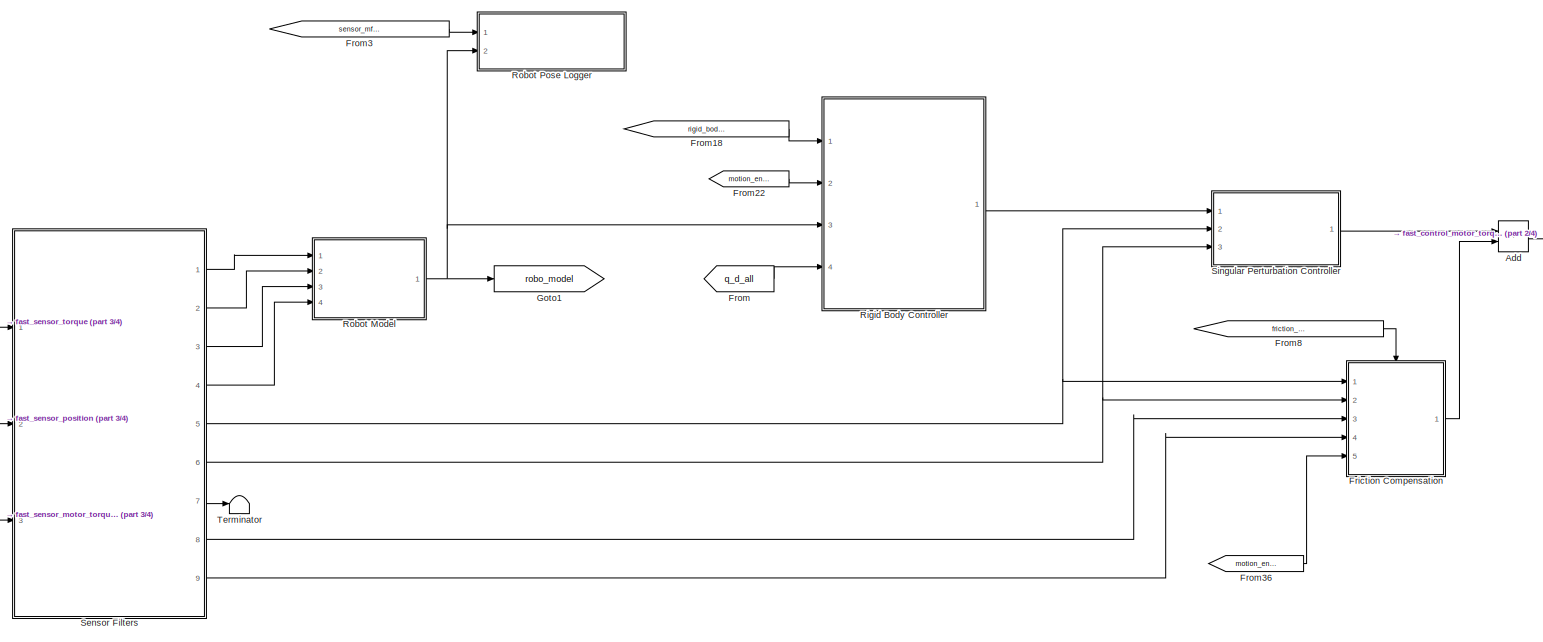
[diagram: root canvas - part 1/4, full width, top band]
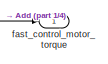
[diagram: root canvas - part 2/4, top right region]
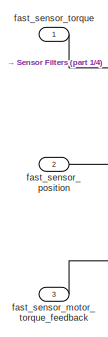
[diagram: root canvas - part 3/4, middle left region]
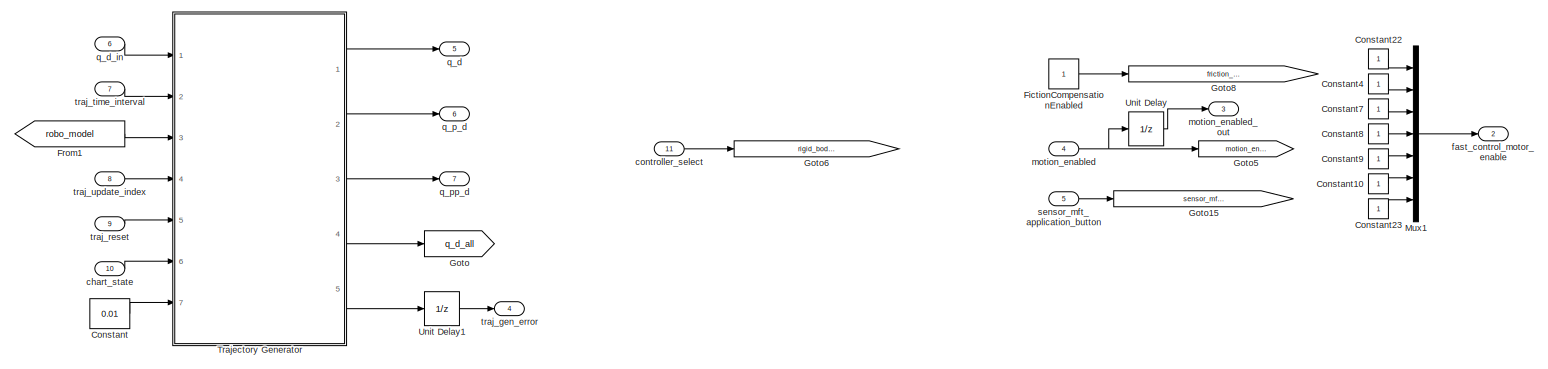
[diagram: root canvas - part 4/4, full width, bottom band]
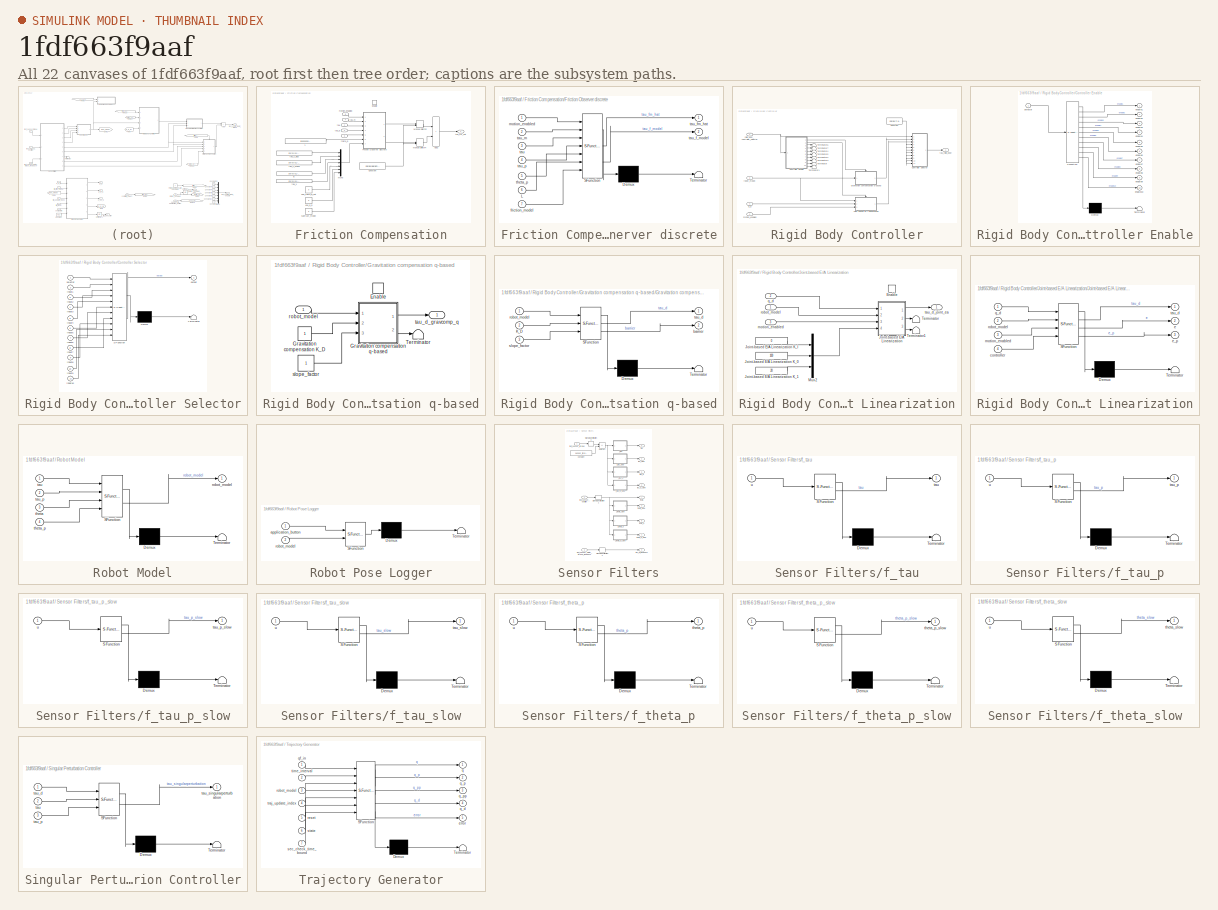
[diagram: thumbnail index - all 22 canvases of the model, root first then tree order]
MODEL slx_1fdf663f9aaf
KIND model
CONFIG AbsTol = auto
CONFIG EnableMultiTasking = off
CONFIG FixedStep = param_controller.T_a
CONFIG InitFcn = iiwa_joint_trajectoryfollowingcontrol_rigid_parameters;
CONFIG MaxStep = auto
CONFIG MinStep = auto
CONFIG RelTol = 1e-3
CONFIG SampleTimeConstraint = Unconstrained
CONFIG Solver = FixedStepAuto
CONFIG SolverName = FixedStepAuto
CONFIG StartTime = 0.0
CONFIG StopTime = 10.0
BLOCK [Sum] Add
  IconShape = rectangular
  Ports = [2, 1]
BLOCK [Constant] Constant
  Value = 0.01
BLOCK [Constant] Constant10
BLOCK [Constant] Constant22
BLOCK [Constant] Constant23
BLOCK [Constant] Constant4
BLOCK [Constant] Constant7
BLOCK [Constant] Constant8
BLOCK [Constant] Constant9
BLOCK [Constant] FictionCompensationEnabled
BLOCK [SubSystem] Friction Compensation
  Ports = [5, 1, 1]
  RequestExecContextInheritance = off
BLOCK [Sum] Friction Compensation/Add2
  IconShape = rectangular
  Ports = [2, 1]
BLOCK [Constant] Friction Compensation/Constant
  Value = zeros(param_robot.n,1)
BLOCK [Constant] Friction Compensation/E
  Value = [zeros(6,1);120]
BLOCK [EnablePort] Friction Compensation/Enable
  Ports = []
BLOCK [SubSystem] Friction Compensation/Friction Observer discrete
  ErrorFcn = Stateflow.Translate.translate
  PermitHierarchicalResolution = ExplicitOnly
  Ports = [7, 2]
  RequestExecContextInheritance = off
  SFBlockType = MATLAB Function
  TreatAsAtomicUnit = on
BLOCK [Demux] Friction Compensation/Friction Observer discrete/ Demux 
  Outputs = 1
  Ports = [1, 1]
BLOCK [S-Function] Friction Compensation/Friction Observer discrete/ SFunction 
  EnableBusSupport = on
  FunctionName = sf_sfun
  Parameters = param_controller,param_robot
  PortCounts = [7 3]
  Ports = [7, 3]
  SFcnIsStateOwnerBlock = off
  SFunctionDeploymentMode = off
  Tag = Stateflow S-Function 20
BLOCK [Terminator] Friction Compensation/Friction Observer discrete/ Terminator 
BLOCK [Inport] Friction Compensation/Friction Observer discrete/L
  Port = 6
BLOCK [Inport] Friction Compensation/Friction Observer discrete/friction_model
  Port = 7
BLOCK [Inport] Friction Compensation/Friction Observer discrete/motion_enabled
BLOCK [Inport] Friction Compensation/Friction Observer discrete/tau
  Port = 3
BLOCK [Outport] Friction Compensation/Friction Observer discrete/tau_f_model
  Port = 2
  VectorParamsAs1DForOutWhenUnconnected = off
BLOCK [Outport] Friction Compensation/Friction Observer discrete/tau_fm_hat
  VectorParamsAs1DForOutWhenUnconnected = off
BLOCK [Inport] Friction Compensation/Friction Observer discrete/tau_m
  Port = 2
BLOCK [Inport] Friction Compensation/Friction Observer discrete/tau_p
  Port = 4
BLOCK [Inport] Friction Compensation/Friction Observer discrete/theta_p
  Port = 5
BLOCK [Constant] Friction Compensation/L
  Value = [200;200;300;300;500;1000;1000]
BLOCK [ManualSwitch] Friction Compensation/Manual Switch2
BLOCK [ManualSwitch] Friction Compensation/Manual Switch4
  CurrentSetting = 0
BLOCK [Mux] Friction Compensation/Mux5
  DisplayOption = bar
  Inputs = 7
  Ports = [7, 1]
BLOCK [Inport] Friction Compensation/motion_enabled
  Port = 5
BLOCK [Constant] Friction Compensation/subtract_model
  Value = 0
BLOCK [Inport] Friction Compensation/tau
BLOCK [Constant] Friction Compensation/tau_c_minus
  Value = [zeros(6,1);0.28]
BLOCK [Constant] Friction Compensation/tau_c_plus
  Value = [zeros(6,1);0.2]
BLOCK [Outport] Friction Compensation/tau_fm_hat
  VectorParamsAs1DForOutWhenUnconnected = off
BLOCK [Inport] Friction Compensation/tau_m
  Port = 4
BLOCK [Inport] Friction Compensation/tau_p
  Port = 2
BLOCK [Constant] Friction Compensation/tau_v
  Value = [zeros(6,1);0.5]
BLOCK [Inport] Friction Compensation/theta_p
  Port = 3
BLOCK [Constant] Friction Compensation/use_q_p
  Value = 0
BLOCK [Constant] Friction Compensation/use_theta_p_hat
  Value = 0
BLOCK [From] From
  GotoTag = q_d_all
BLOCK [From] From1
  GotoTag = robo_model
BLOCK [From] From18
  GotoTag = rigid_body_controller_selector
BLOCK [From] From22
  GotoTag = motion_enabled
BLOCK [From] From3
  GotoTag = sensor_mft_application_button
BLOCK [From] From36
  GotoTag = motion_enabled
BLOCK [From] From8
  GotoTag = friction_compensation_enabled
BLOCK [Goto] Goto
  GotoTag = q_d_all
BLOCK [Goto] Goto1
  GotoTag = robo_model
BLOCK [Goto] Goto15
  GotoTag = sensor_mft_application_button
BLOCK [Goto] Goto5
  GotoTag = motion_enabled
BLOCK [Goto] Goto6
  GotoTag = rigid_body_controller_selector
BLOCK [Goto] Goto8
  GotoTag = friction_compensation_enabled
BLOCK [Mux] Mux1
  DisplayOption = bar
  Inputs = 7
  Ports = [7, 1]
BLOCK [SubSystem] Rigid Body Controller
  Ports = [4, 1]
  RequestExecContextInheritance = off
BLOCK [Constant] Rigid Body Controller/Constant
  Value = zeros(7,1)
BLOCK [SubSystem] Rigid Body Controller/Controller Enable
  ErrorFcn = Stateflow.Translate.translate
  PermitHierarchicalResolution = ExplicitOnly
  Ports = [1, 10]
  RequestExecContextInheritance = off
  SFBlockType = MATLAB Function
  TreatAsAtomicUnit = on
BLOCK [Demux] Rigid Body Controller/Controller Enable/ Demux 
  Outputs = 1
  Ports = [1, 1]
BLOCK [S-Function] Rigid Body Controller/Controller Enable/ SFunction 
  EnableBusSupport = on
  FunctionName = sf_sfun
  PortCounts = [1 11]
  Ports = [1, 11]
  SFcnIsStateOwnerBlock = off
  SFunctionDeploymentMode = off
  Tag = Stateflow S-Function 28
BLOCK [Terminator] Rigid Body Controller/Controller Enable/ Terminator 
BLOCK [Outport] Rigid Body Controller/Controller Enable/enable1
  VectorParamsAs1DForOutWhenUnconnected = off
BLOCK [Outport] Rigid Body Controller/Controller Enable/enable10
  Port = 10
  VectorParamsAs1DForOutWhenUnconnected = off
BLOCK [Outport] Rigid Body Controller/Controller Enable/enable2
  Port = 2
  VectorParamsAs1DForOutWhenUnconnected = off
BLOCK [Outport] Rigid Body Controller/Controller Enable/enable3
  Port = 3
  VectorParamsAs1DForOutWhenUnconnected = off
BLOCK [Outport] Rigid Body Controller/Controller Enable/enable4
  Port = 4
  VectorParamsAs1DForOutWhenUnconnected = off
BLOCK [Outport] Rigid Body Controller/Controller Enable/enable5
  Port = 5
  VectorParamsAs1DForOutWhenUnconnected = off
BLOCK [Outport] Rigid Body Controller/Controller Enable/enable6
  Port = 6
  VectorParamsAs1DForOutWhenUnconnected = off
BLOCK [Outport] Rigid Body Controller/Controller Enable/enable7
  Port = 7
  VectorParamsAs1DForOutWhenUnconnected = off
BLOCK [Outport] Rigid Body Controller/Controller Enable/enable8
  Port = 8
  VectorParamsAs1DForOutWhenUnconnected = off
BLOCK [Outport] Rigid Body Controller/Controller Enable/enable9
  Port = 9
  VectorParamsAs1DForOutWhenUnconnected = off
BLOCK [Inport] Rigid Body Controller/Controller Enable/selector
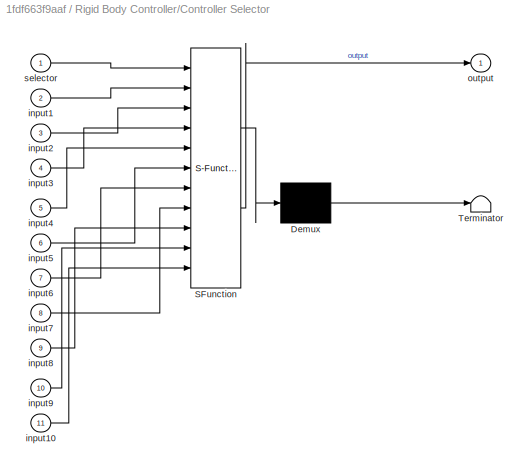
BLOCK [SubSystem] Rigid Body Controller/Controller Selector
  ErrorFcn = Stateflow.Translate.translate
  PermitHierarchicalResolution = ExplicitOnly
  Ports = [11, 1]
  RequestExecContextInheritance = off
  SFBlockType = MATLAB Function
  TreatAsAtomicUnit = on
BLOCK [Demux] Rigid Body Controller/Controller Selector/ Demux 
  Outputs = 1
  Ports = [1, 1]
BLOCK [S-Function] Rigid Body Controller/Controller Selector/ SFunction 
  EnableBusSupport = on
  FunctionName = sf_sfun
  PortCounts = [11 2]
  Ports = [11, 2]
  SFcnIsStateOwnerBlock = off
  SFunctionDeploymentMode = off
  Tag = Stateflow S-Function 29
BLOCK [Terminator] Rigid Body Controller/Controller Selector/ Terminator 
BLOCK [Inport] Rigid Body Controller/Controller Selector/input1
  Port = 2
BLOCK [Inport] Rigid Body Controller/Controller Selector/input10
  Port = 11
BLOCK [Inport] Rigid Body Controller/Controller Selector/input2
  Port = 3
BLOCK [Inport] Rigid Body Controller/Controller Selector/input3
  Port = 4
BLOCK [Inport] Rigid Body Controller/Controller Selector/input4
  Port = 5
BLOCK [Inport] Rigid Body Controller/Controller Selector/input5
  Port = 6
BLOCK [Inport] Rigid Body Controller/Controller Selector/input6
  Port = 7
BLOCK [Inport] Rigid Body Controller/Controller Selector/input7
  Port = 8
BLOCK [Inport] Rigid Body Controller/Controller Selector/input8
  Port = 9
BLOCK [Inport] Rigid Body Controller/Controller Selector/input9
  Port = 10
BLOCK [Outport] Rigid Body Controller/Controller Selector/output
  VectorParamsAs1DForOutWhenUnconnected = off
BLOCK [Inport] Rigid Body Controller/Controller Selector/selector
BLOCK [SubSystem] Rigid Body Controller/Gravitation compensation q-based
  Ports = [1, 1, 1]
  RequestExecContextInheritance = off
BLOCK [EnablePort] Rigid Body Controller/Gravitation compensation q-based/Enable
  Ports = []
  StatesWhenEnabling = reset
BLOCK [Constant] Rigid Body Controller/Gravitation compensation q-based/Gravitation compensation K_D
BLOCK [SubSystem] Rigid Body Controller/Gravitation compensation q-based/Gravitation compensation q-based
  ErrorFcn = Stateflow.Translate.translate
  PermitHierarchicalResolution = ExplicitOnly
  Ports = [3, 2]
  RequestExecContextInheritance = off
  SFBlockType = MATLAB Function
  TreatAsAtomicUnit = on
BLOCK [Demux] Rigid Body Controller/Gravitation compensation q-based/Gravitation compensation q-based/ Demux 
  Outputs = 1
  Ports = [1, 1]
BLOCK [S-Function] Rigid Body Controller/Gravitation compensation q-based/Gravitation compensation q-based/ SFunction 
  EnableBusSupport = on
  FunctionName = sf_sfun
  Parameters = param_nullspace,param_robot
  PortCounts = [3 3]
  Ports = [3, 3]
  SFcnIsStateOwnerBlock = off
  SFunctionDeploymentMode = off
  Tag = Stateflow S-Function 13
BLOCK [Terminator] Rigid Body Controller/Gravitation compensation q-based/Gravitation compensation q-based/ Terminator 
BLOCK [Inport] Rigid Body Controller/Gravitation compensation q-based/Gravitation compensation q-based/K_D
  Port = 2
BLOCK [Outport] Rigid Body Controller/Gravitation compensation q-based/Gravitation compensation q-based/barrier
  Port = 2
  VectorParamsAs1DForOutWhenUnconnected = off
BLOCK [Inport] Rigid Body Controller/Gravitation compensation q-based/Gravitation compensation q-based/robot_model
BLOCK [Inport] Rigid Body Controller/Gravitation compensation q-based/Gravitation compensation q-based/slope_factor
  Port = 3
BLOCK [Outport] Rigid Body Controller/Gravitation compensation q-based/Gravitation compensation q-based/tau_d
  VectorParamsAs1DForOutWhenUnconnected = off
BLOCK [Terminator] Rigid Body Controller/Gravitation compensation q-based/Terminator
BLOCK [Inport] Rigid Body Controller/Gravitation compensation q-based/robot_model
BLOCK [Constant] Rigid Body Controller/Gravitation compensation q-based/slope_factor
BLOCK [Outport] Rigid Body Controller/Gravitation compensation q-based/tau_d_gravcomp_q
  VectorParamsAs1DForOutWhenUnconnected = off
BLOCK [SubSystem] Rigid Body Controller/Joint-based E//A Linearization
  Ports = [3, 1, 1]
  RequestExecContextInheritance = off
BLOCK [EnablePort] Rigid Body Controller/Joint-based E//A Linearization/Enable
  Ports = []
  StatesWhenEnabling = reset
BLOCK [SubSystem] Rigid Body Controller/Joint-based E//A Linearization/Joint-based E//A Linearization
  ErrorFcn = Stateflow.Translate.translate
  PermitHierarchicalResolution = ExplicitOnly
  Ports = [4, 3]
  RequestExecContextInheritance = off
  SFBlockType = MATLAB Function
  TreatAsAtomicUnit = on
BLOCK [Constant] Rigid Body Controller/Joint-based E//A Linearization/Joint-based E//A Linearization K_0
  Value = 100
BLOCK [Constant] Rigid Body Controller/Joint-based E//A Linearization/Joint-based E//A Linearization K_1
  Value = 20
BLOCK [Constant] Rigid Body Controller/Joint-based E//A Linearization/Joint-based E//A Linearization K_I
  Value = 0
BLOCK [Demux] Rigid Body Controller/Joint-based E//A Linearization/Joint-based E//A Linearization/ Demux 
  Outputs = 1
  Ports = [1, 1]
BLOCK [S-Function] Rigid Body Controller/Joint-based E//A Linearization/Joint-based E//A Linearization/ SFunction 
  EnableBusSupport = on
  FunctionName = sf_sfun
  Parameters = param_controller,param_robot
  PortCounts = [4 4]
  Ports = [4, 4]
  SFcnIsStateOwnerBlock = off
  SFunctionDeploymentMode = off
  Tag = Stateflow S-Function 15
BLOCK [Terminator] Rigid Body Controller/Joint-based E//A Linearization/Joint-based E//A Linearization/ Terminator 
BLOCK [Inport] Rigid Body Controller/Joint-based E//A Linearization/Joint-based E//A Linearization/controller
  Port = 4
BLOCK [Outport] Rigid Body Controller/Joint-based E//A Linearization/Joint-based E//A Linearization/e
  Port = 2
  VectorParamsAs1DForOutWhenUnconnected = off
BLOCK [Outport] Rigid Body Controller/Joint-based E//A Linearization/Joint-based E//A Linearization/e_p
  Port = 3
  VectorParamsAs1DForOutWhenUnconnected = off
BLOCK [Inport] Rigid Body Controller/Joint-based E//A Linearization/Joint-based E//A Linearization/motion_enabled
  Port = 3
BLOCK [Inport] Rigid Body Controller/Joint-based E//A Linearization/Joint-based E//A Linearization/q_d
BLOCK [Inport] Rigid Body Controller/Joint-based E//A Linearization/Joint-based E//A Linearization/robot_model
  Port = 2
BLOCK [Outport] Rigid Body Controller/Joint-based E//A Linearization/Joint-based E//A Linearization/tau_d
  VectorParamsAs1DForOutWhenUnconnected = off
BLOCK [Mux] Rigid Body Controller/Joint-based E//A Linearization/Mux2
  DisplayOption = bar
  Inputs = 3
  Ports = [3, 1]
BLOCK [Terminator] Rigid Body Controller/Joint-based E//A Linearization/Terminator
BLOCK [Terminator] Rigid Body Controller/Joint-based E//A Linearization/Terminator1
BLOCK [Inport] Rigid Body Controller/Joint-based E//A Linearization/motion_enabled
  Port = 3
BLOCK [Inport] Rigid Body Controller/Joint-based E//A Linearization/q_d
  Port = 2
BLOCK [Inport] Rigid Body Controller/Joint-based E//A Linearization/robot_model
BLOCK [Outport] Rigid Body Controller/Joint-based E//A Linearization/tau_d_joint_ea
  VectorParamsAs1DForOutWhenUnconnected = off
BLOCK [Terminator] Rigid Body Controller/Terminator
BLOCK [Terminator] Rigid Body Controller/Terminator1
BLOCK [Terminator] Rigid Body Controller/Terminator2
BLOCK [Terminator] Rigid Body Controller/Terminator3
BLOCK [Terminator] Rigid Body Controller/Terminator4
BLOCK [Terminator] Rigid Body Controller/Terminator5
BLOCK [Terminator] Rigid Body Controller/Terminator6
BLOCK [Terminator] Rigid Body Controller/Terminator7
BLOCK [Inport] Rigid Body Controller/motion_enabled
  Port = 2
BLOCK [Inport] Rigid Body Controller/q_d
  Port = 4
BLOCK [Inport] Rigid Body Controller/rigid_body_controller_selector
BLOCK [Inport] Rigid Body Controller/robot_model
  Port = 3
BLOCK [Outport] Rigid Body Controller/tau_rigid_body
  VectorParamsAs1DForOutWhenUnconnected = off
BLOCK [SubSystem] Robot Model
  ErrorFcn = Stateflow.Translate.translate
  PermitHierarchicalResolution = ExplicitOnly
  Ports = [4, 1]
  RequestExecContextInheritance = off
  SFBlockType = MATLAB Function
  TreatAsAtomicUnit = on
BLOCK [Demux] Robot Model/ Demux 
  Outputs = 1
  Ports = [1, 1]
BLOCK [S-Function] Robot Model/ SFunction 
  EnableBusSupport = on
  FunctionName = sf_sfun
  Parameters = param_controller,param_robot
  PortCounts = [4 2]
  Ports = [4, 2]
  SFcnIsStateOwnerBlock = off
  SFunctionDeploymentMode = off
  Tag = Stateflow S-Function 16
BLOCK [Terminator] Robot Model/ Terminator 
BLOCK [Outport] Robot Model/robot_model
  VectorParamsAs1DForOutWhenUnconnected = off
BLOCK [Inport] Robot Model/tau
BLOCK [Inport] Robot Model/tau_p
  Port = 2
BLOCK [Inport] Robot Model/theta
  Port = 3
BLOCK [Inport] Robot Model/theta_p
  Port = 4
BLOCK [SubSystem] Robot Pose Logger
  ErrorFcn = Stateflow.Translate.translate
  PermitHierarchicalResolution = ExplicitOnly
  Ports = [2]
  RequestExecContextInheritance = off
  SFBlockType = MATLAB Function
  TreatAsAtomicUnit = on
BLOCK [Demux] Robot Pose Logger/ Demux 
  Outputs = 1
  Ports = [1, 1]
BLOCK [S-Function] Robot Pose Logger/ SFunction 
  EnableBusSupport = on
  FunctionName = sf_sfun
  PortCounts = [2 1]
  Ports = [2, 1]
  SFcnIsStateOwnerBlock = off
  SFunctionDeploymentMode = off
  Tag = Stateflow S-Function 10
BLOCK [Terminator] Robot Pose Logger/ Terminator 
BLOCK [Inport] Robot Pose Logger/application_button
BLOCK [Inport] Robot Pose Logger/robot_model
  Port = 2
BLOCK [SubSystem] Sensor Filters
  Ports = [3, 9]
  RequestExecContextInheritance = off
BLOCK [Constant] Sensor Filters/Constant
  Value = sensor_torque_offset
BLOCK [SignalSpecification] Sensor Filters/Signal Specification1
  Dimensions = 7
BLOCK [SignalSpecification] Sensor Filters/Signal Specification2
  Dimensions = 7
BLOCK [SignalSpecification] Sensor Filters/Signal Specification3
  Dimensions = 7
BLOCK [Sum] Sensor Filters/Subtract
  IconShape = rectangular
  Inputs = +-
  Ports = [2, 1]
BLOCK [SubSystem] Sensor Filters/f_tau
  ErrorFcn = Stateflow.Translate.translate
  PermitHierarchicalResolution = ExplicitOnly
  Ports = [1, 1]
  RequestExecContextInheritance = off
  SFBlockType = MATLAB Function
  TreatAsAtomicUnit = on
BLOCK [Demux] Sensor Filters/f_tau/ Demux 
  Outputs = 1
  Ports = [1, 1]
BLOCK [S-Function] Sensor Filters/f_tau/ SFunction 
  EnableBusSupport = on
  FunctionName = sf_sfun
  Parameters = filter_tau_T_1,param_controller
  PortCounts = [1 2]
  Ports = [1, 2]
  SFcnIsStateOwnerBlock = off
  SFunctionDeploymentMode = off
  Tag = Stateflow S-Function 3
BLOCK [Terminator] Sensor Filters/f_tau/ Terminator 
BLOCK [Outport] Sensor Filters/f_tau/tau
  VectorParamsAs1DForOutWhenUnconnected = off
BLOCK [Inport] Sensor Filters/f_tau/u
BLOCK [SubSystem] Sensor Filters/f_tau_p
  ErrorFcn = Stateflow.Translate.translate
  PermitHierarchicalResolution = ExplicitOnly
  Ports = [1, 1]
  RequestExecContextInheritance = off
  SFBlockType = MATLAB Function
  TreatAsAtomicUnit = on
BLOCK [Demux] Sensor Filters/f_tau_p/ Demux 
  Outputs = 1
  Ports = [1, 1]
BLOCK [S-Function] Sensor Filters/f_tau_p/ SFunction 
  EnableBusSupport = on
  FunctionName = sf_sfun
  Parameters = filter_tau_p_T_1,param_controller
  PortCounts = [1 2]
  Ports = [1, 2]
  SFcnIsStateOwnerBlock = off
  SFunctionDeploymentMode = off
  Tag = Stateflow S-Function 4
BLOCK [Terminator] Sensor Filters/f_tau_p/ Terminator 
BLOCK [Outport] Sensor Filters/f_tau_p/tau_p
  VectorParamsAs1DForOutWhenUnconnected = off
BLOCK [Inport] Sensor Filters/f_tau_p/u
BLOCK [SubSystem] Sensor Filters/f_tau_p_slow
  ErrorFcn = Stateflow.Translate.translate
  PermitHierarchicalResolution = ExplicitOnly
  Ports = [1, 1]
  RequestExecContextInheritance = off
  SFBlockType = MATLAB Function
  TreatAsAtomicUnit = on
BLOCK [Demux] Sensor Filters/f_tau_p_slow/ Demux 
  Outputs = 1
  Ports = [1, 1]
BLOCK [S-Function] Sensor Filters/f_tau_p_slow/ SFunction 
  EnableBusSupport = on
  FunctionName = sf_sfun
  Parameters = filter_tau_p_slow_T_1,param_controller
  PortCounts = [1 2]
  Ports = [1, 2]
  SFcnIsStateOwnerBlock = off
  SFunctionDeploymentMode = off
  Tag = Stateflow S-Function 22
BLOCK [Terminator] Sensor Filters/f_tau_p_slow/ Terminator 
BLOCK [Outport] Sensor Filters/f_tau_p_slow/tau_p_slow
  VectorParamsAs1DForOutWhenUnconnected = off
BLOCK [Inport] Sensor Filters/f_tau_p_slow/u
BLOCK [SubSystem] Sensor Filters/f_tau_slow
  ErrorFcn = Stateflow.Translate.translate
  PermitHierarchicalResolution = ExplicitOnly
  Ports = [1, 1]
  RequestExecContextInheritance = off
  SFBlockType = MATLAB Function
  TreatAsAtomicUnit = on
BLOCK [Demux] Sensor Filters/f_tau_slow/ Demux 
  Outputs = 1
  Ports = [1, 1]
BLOCK [S-Function] Sensor Filters/f_tau_slow/ SFunction 
  EnableBusSupport = on
  FunctionName = sf_sfun
  Parameters = filter_tau_slow_T_1,param_controller
  PortCounts = [1 2]
  Ports = [1, 2]
  SFcnIsStateOwnerBlock = off
  SFunctionDeploymentMode = off
  Tag = Stateflow S-Function 12
BLOCK [Terminator] Sensor Filters/f_tau_slow/ Terminator 
BLOCK [Outport] Sensor Filters/f_tau_slow/tau_slow
  VectorParamsAs1DForOutWhenUnconnected = off
BLOCK [Inport] Sensor Filters/f_tau_slow/u
BLOCK [SubSystem] Sensor Filters/f_theta_p
  ErrorFcn = Stateflow.Translate.translate
  PermitHierarchicalResolution = ExplicitOnly
  Ports = [1, 1]
  RequestExecContextInheritance = off
  SFBlockType = MATLAB Function
  TreatAsAtomicUnit = on
BLOCK [Demux] Sensor Filters/f_theta_p/ Demux 
  Outputs = 1
  Ports = [1, 1]
BLOCK [S-Function] Sensor Filters/f_theta_p/ SFunction 
  EnableBusSupport = on
  FunctionName = sf_sfun
  Parameters = filter_theta_p_T_1,param_controller
  PortCounts = [1 2]
  Ports = [1, 2]
  SFcnIsStateOwnerBlock = off
  SFunctionDeploymentMode = off
  Tag = Stateflow S-Function 14
BLOCK [Terminator] Sensor Filters/f_theta_p/ Terminator 
BLOCK [Outport] Sensor Filters/f_theta_p/theta_p
  VectorParamsAs1DForOutWhenUnconnected = off
BLOCK [Inport] Sensor Filters/f_theta_p/u
BLOCK [SubSystem] Sensor Filters/f_theta_p_slow
  ErrorFcn = Stateflow.Translate.translate
  PermitHierarchicalResolution = ExplicitOnly
  Ports = [1, 1]
  RequestExecContextInheritance = off
  SFBlockType = MATLAB Function
  TreatAsAtomicUnit = on
BLOCK [Demux] Sensor Filters/f_theta_p_slow/ Demux 
  Outputs = 1
  Ports = [1, 1]
BLOCK [S-Function] Sensor Filters/f_theta_p_slow/ SFunction 
  EnableBusSupport = on
  FunctionName = sf_sfun
  Parameters = filter_theta_p_slow_T_1,param_controller
  PortCounts = [1 2]
  Ports = [1, 2]
  SFcnIsStateOwnerBlock = off
  SFunctionDeploymentMode = off
  Tag = Stateflow S-Function 23
BLOCK [Terminator] Sensor Filters/f_theta_p_slow/ Terminator 
BLOCK [Outport] Sensor Filters/f_theta_p_slow/theta_p_slow
  VectorParamsAs1DForOutWhenUnconnected = off
BLOCK [Inport] Sensor Filters/f_theta_p_slow/u
BLOCK [SubSystem] Sensor Filters/f_theta_slow
  ErrorFcn = Stateflow.Translate.translate
  PermitHierarchicalResolution = ExplicitOnly
  Ports = [1, 1]
  RequestExecContextInheritance = off
  SFBlockType = MATLAB Function
  TreatAsAtomicUnit = on
BLOCK [Demux] Sensor Filters/f_theta_slow/ Demux 
  Outputs = 1
  Ports = [1, 1]
BLOCK [S-Function] Sensor Filters/f_theta_slow/ SFunction 
  EnableBusSupport = on
  FunctionName = sf_sfun
  Parameters = filter_theta_slow_T_1,param_controller
  PortCounts = [1 2]
  Ports = [1, 2]
  SFcnIsStateOwnerBlock = off
  SFunctionDeploymentMode = off
  Tag = Stateflow S-Function 21
BLOCK [Terminator] Sensor Filters/f_theta_slow/ Terminator 
BLOCK [Outport] Sensor Filters/f_theta_slow/theta_slow
  VectorParamsAs1DForOutWhenUnconnected = off
BLOCK [Inport] Sensor Filters/f_theta_slow/u
BLOCK [Inport] Sensor Filters/fast_sensor_motor_torque_feedback
  Port = 3
BLOCK [Inport] Sensor Filters/fast_sensor_position
  Port = 2
BLOCK [Inport] Sensor Filters/fast_sensor_torque
BLOCK [Outport] Sensor Filters/tau
  Port = 5
  VectorParamsAs1DForOutWhenUnconnected = off
BLOCK [Outport] Sensor Filters/tau_m_feedback
  Port = 9
  VectorParamsAs1DForOutWhenUnconnected = off
BLOCK [Outport] Sensor Filters/tau_p
  Port = 6
  VectorParamsAs1DForOutWhenUnconnected = off
BLOCK [Outport] Sensor Filters/tau_p_slow
  Port = 2
  VectorParamsAs1DForOutWhenUnconnected = off
BLOCK [Outport] Sensor Filters/tau_slow
  VectorParamsAs1DForOutWhenUnconnected = off
BLOCK [Outport] Sensor Filters/theta
  Port = 7
  VectorParamsAs1DForOutWhenUnconnected = off
BLOCK [Outport] Sensor Filters/theta_p
  Port = 8
  VectorParamsAs1DForOutWhenUnconnected = off
BLOCK [Outport] Sensor Filters/theta_p_slow
  Port = 4
  VectorParamsAs1DForOutWhenUnconnected = off
BLOCK [Outport] Sensor Filters/theta_slow
  Port = 3
  VectorParamsAs1DForOutWhenUnconnected = off
BLOCK [SubSystem] Singular Perturbation Controller
  ErrorFcn = Stateflow.Translate.translate
  PermitHierarchicalResolution = ExplicitOnly
  Ports = [3, 1]
  RequestExecContextInheritance = off
  SFBlockType = MATLAB Function
  TreatAsAtomicUnit = on
BLOCK [Demux] Singular Perturbation Controller/ Demux 
  Outputs = 1
  Ports = [1, 1]
BLOCK [S-Function] Singular Perturbation Controller/ SFunction 
  EnableBusSupport = on
  FunctionName = sf_sfun
  Parameters = param_controller
  PortCounts = [3 2]
  Ports = [3, 2]
  SFcnIsStateOwnerBlock = off
  SFunctionDeploymentMode = off
  Tag = Stateflow S-Function 6
BLOCK [Terminator] Singular Perturbation Controller/ Terminator 
BLOCK [Inport] Singular Perturbation Controller/tau
  Port = 2
BLOCK [Inport] Singular Perturbation Controller/tau_d
BLOCK [Inport] Singular Perturbation Controller/tau_p
  Port = 3
BLOCK [Outport] Singular Perturbation Controller/tau_singularperturbation
  VectorParamsAs1DForOutWhenUnconnected = off
BLOCK [Terminator] Terminator
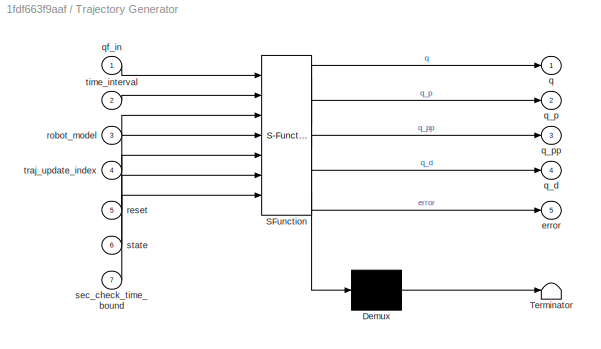
BLOCK [SubSystem] Trajectory Generator
  ErrorFcn = Stateflow.Translate.translate
  PermitHierarchicalResolution = ExplicitOnly
  Ports = [7, 5]
  RequestExecContextInheritance = off
  SFBlockType = MATLAB Function
  TreatAsAtomicUnit = on
BLOCK [Demux] Trajectory Generator/ Demux 
  Outputs = 1
  Ports = [1, 1]
BLOCK [S-Function] Trajectory Generator/ SFunction 
  EnableBusSupport = on
  FunctionName = sf_sfun
  Parameters = param_robot,timing
  PortCounts = [7 6]
  Ports = [7, 6]
  SFcnIsStateOwnerBlock = off
  SFunctionDeploymentMode = off
  Tag = Stateflow S-Function 7
BLOCK [Terminator] Trajectory Generator/ Terminator 
BLOCK [Outport] Trajectory Generator/error
  Port = 5
  VectorParamsAs1DForOutWhenUnconnected = off
BLOCK [Outport] Trajectory Generator/q
BLOCK [Outport] Trajectory Generator/q_d
  Port = 4
  VectorParamsAs1DForOutWhenUnconnected = off
BLOCK [Outport] Trajectory Generator/q_p
  Port = 2
BLOCK [Outport] Trajectory Generator/q_pp
  Port = 3
BLOCK [Inport] Trajectory Generator/qf_in
BLOCK [Inport] Trajectory Generator/reset
  Port = 5
BLOCK [Inport] Trajectory Generator/robot_model
  Port = 3
BLOCK [Inport] Trajectory Generator/sec_check_time_bound
  Port = 7
BLOCK [Inport] Trajectory Generator/state
  Port = 6
BLOCK [Inport] Trajectory Generator/time_interval
  Port = 2
BLOCK [Inport] Trajectory Generator/traj_update_index
  Port = 4
BLOCK [UnitDelay] Unit Delay
  HasFrameUpgradeWarning = on
  SampleTime = -1
BLOCK [UnitDelay] Unit Delay1
  HasFrameUpgradeWarning = on
  SampleTime = -1
BLOCK [Inport] chart_state
  Port = 10
BLOCK [Inport] controller_select
  Port = 11
BLOCK [Outport] fast_control_motor_enable
  Port = 2
  VectorParamsAs1DForOutWhenUnconnected = off
BLOCK [Outport] fast_control_motor_torque
  VectorParamsAs1DForOutWhenUnconnected = off
BLOCK [Inport] fast_sensor_motor_torque_feedback
  Port = 3
BLOCK [Inport] fast_sensor_position
  Port = 2
BLOCK [Inport] fast_sensor_torque
BLOCK [Inport] motion_enabled
  Port = 4
BLOCK [Outport] motion_enabled_out
  Port = 3
  VectorParamsAs1DForOutWhenUnconnected = off
BLOCK [Outport] q_d
  Port = 5
BLOCK [Inport] q_d_in
  Port = 6
  PortDimensions = 7
BLOCK [Outport] q_p_d
  Port = 6
BLOCK [Outport] q_pp_d
  Port = 7
BLOCK [Inport] sensor_mft_application_button
  Port = 5
BLOCK [Outport] traj_gen_error
  OutDataTypeStr = boolean
  Port = 4
  VectorParamsAs1DForOutWhenUnconnected = off
BLOCK [Inport] traj_reset
  Port = 9
BLOCK [Inport] traj_time_interval
  Port = 7
  PortDimensions = 2
BLOCK [Inport] traj_update_index
  Port = 8
LINE Add:1 -> fast_control_motor_torque:1
LINE Constant10:1 -> Mux1:6
LINE Constant22:1 -> Mux1:1
LINE Constant23:1 -> Mux1:7
LINE Constant4:1 -> Mux1:2
LINE Constant7:1 -> Mux1:3
LINE Constant8:1 -> Mux1:4
LINE Constant9:1 -> Mux1:5
LINE Constant:1 -> Trajectory Generator:7
LINE FictionCompensationEnabled:1 -> Goto8:1
LINE Friction Compensation/Add2:1 -> Friction Compensation/tau_fm_hat:1
NET Friction Compensation/Constant:1 -> Friction Compensation/Manual Switch2:2, Friction Compensation/Manual Switch4:2
LINE Friction Compensation/E:1 -> Friction Compensation/Mux5:3
LINE Friction Compensation/Friction Observer discrete:1 -> Friction Compensation/Manual Switch2:1
LINE Friction Compensation/Friction Observer discrete:2 -> Friction Compensation/Manual Switch4:1
LINE Friction Compensation/L:1 -> Friction Compensation/Friction Observer discrete:6
LINE Friction Compensation/Manual Switch2:1 -> Friction Compensation/Add2:1
LINE Friction Compensation/Manual Switch4:1 -> Friction Compensation/Add2:2
LINE Friction Compensation/Mux5:1 -> Friction Compensation/Friction Observer discrete:7
LINE Friction Compensation/motion_enabled:1 -> Friction Compensation/Friction Observer discrete:1
LINE Friction Compensation/subtract_model:1 -> Friction Compensation/Mux5:7
LINE Friction Compensation/tau:1 -> Friction Compensation/Friction Observer discrete:3
LINE Friction Compensation/tau_c_minus:1 -> Friction Compensation/Mux5:2
LINE Friction Compensation/tau_c_plus:1 -> Friction Compensation/Mux5:1
LINE Friction Compensation/tau_m:1 -> Friction Compensation/Friction Observer discrete:2
LINE Friction Compensation/tau_p:1 -> Friction Compensation/Friction Observer discrete:4
LINE Friction Compensation/tau_v:1 -> Friction Compensation/Mux5:4
LINE Friction Compensation/theta_p:1 -> Friction Compensation/Friction Observer discrete:5
LINE Friction Compensation/use_q_p:1 -> Friction Compensation/Mux5:6
LINE Friction Compensation/use_theta_p_hat:1 -> Friction Compensation/Mux5:5
LINE Friction Compensation:1 -> Add:2
LINE From18:1 -> Rigid Body Controller:1
LINE From1:1 -> Trajectory Generator:3
LINE From22:1 -> Rigid Body Controller:2
LINE From36:1 -> Friction Compensation:5
LINE From3:1 -> Robot Pose Logger:1
LINE From8:1 -> Friction Compensation:enable
LINE From:1 -> Rigid Body Controller:4
LINE Mux1:1 -> fast_control_motor_enable:1
NET Rigid Body Controller/Constant:1 -> Rigid Body Controller/Controller Selector:10, Rigid Body Controller/Controller Selector:11, Rigid Body Controller/Controller Selector:4, Rigid Body Controller/Controller Selector:5, Rigid Body Controller/Controller Selector:6, Rigid Body Controller/Controller Selector:7, Rigid Body Controller/Controller Selector:8, Rigid Body Controller/Controller Selector:9
LINE Rigid Body Controller/Controller Enable:1 -> Rigid Body Controller/Gravitation compensation q-based:enable
LINE Rigid Body Controller/Controller Enable:10 -> Rigid Body Controller/Terminator1:1
LINE Rigid Body Controller/Controller Enable:2 -> Rigid Body Controller/Joint-based E//A Linearization:enable
LINE Rigid Body Controller/Controller Enable:3 -> Rigid Body Controller/Terminator6:1
LINE Rigid Body Controller/Controller Enable:4 -> Rigid Body Controller/Terminator7:1
LINE Rigid Body Controller/Controller Enable:5 -> Rigid Body Controller/Terminator4:1
LINE Rigid Body Controller/Controller Enable:6 -> Rigid Body Controller/Terminator5:1
LINE Rigid Body Controller/Controller Enable:7 -> Rigid Body Controller/Terminator2:1
LINE Rigid Body Controller/Controller Enable:8 -> Rigid Body Controller/Terminator3:1
LINE Rigid Body Controller/Controller Enable:9 -> Rigid Body Controller/Terminator:1
LINE Rigid Body Controller/Controller Selector:1 -> Rigid Body Controller/tau_rigid_body:1
LINE Rigid Body Controller/Gravitation compensation q-based/Gravitation compensation K_D:1 -> Rigid Body Controller/Gravitation compensation q-based/Gravitation compensation q-based:2
LINE Rigid Body Controller/Gravitation compensation q-based/Gravitation compensation q-based:1 -> Rigid Body Controller/Gravitation compensation q-based/tau_d_gravcomp_q:1
LINE Rigid Body Controller/Gravitation compensation q-based/Gravitation compensation q-based:2 -> Rigid Body Controller/Gravitation compensation q-based/Terminator:1
LINE Rigid Body Controller/Gravitation compensation q-based/robot_model:1 -> Rigid Body Controller/Gravitation compensation q-based/Gravitation compensation q-based:1
LINE Rigid Body Controller/Gravitation compensation q-based/slope_factor:1 -> Rigid Body Controller/Gravitation compensation q-based/Gravitation compensation q-based:3
LINE Rigid Body Controller/Gravitation compensation q-based:1 -> Rigid Body Controller/Controller Selector:2
LINE Rigid Body Controller/Joint-based E//A Linearization/Joint-based E//A Linearization K_0:1 -> Rigid Body Controller/Joint-based E//A Linearization/Mux2:2
LINE Rigid Body Controller/Joint-based E//A Linearization/Joint-based E//A Linearization K_1:1 -> Rigid Body Controller/Joint-based E//A Linearization/Mux2:3
LINE Rigid Body Controller/Joint-based E//A Linearization/Joint-based E//A Linearization K_I:1 -> Rigid Body Controller/Joint-based E//A Linearization/Mux2:1
LINE Rigid Body Controller/Joint-based E//A Linearization/Joint-based E//A Linearization:1 -> Rigid Body Controller/Joint-based E//A Linearization/tau_d_joint_ea:1
LINE Rigid Body Controller/Joint-based E//A Linearization/Joint-based E//A Linearization:2 -> Rigid Body Controller/Joint-based E//A Linearization/Terminator:1
LINE Rigid Body Controller/Joint-based E//A Linearization/Joint-based E//A Linearization:3 -> Rigid Body Controller/Joint-based E//A Linearization/Terminator1:1
LINE Rigid Body Controller/Joint-based E//A Linearization/Mux2:1 -> Rigid Body Controller/Joint-based E//A Linearization/Joint-based E//A Linearization:4
LINE Rigid Body Controller/Joint-based E//A Linearization/motion_enabled:1 -> Rigid Body Controller/Joint-based E//A Linearization/Joint-based E//A Linearization:3
LINE Rigid Body Controller/Joint-based E//A Linearization/q_d:1 -> Rigid Body Controller/Joint-based E//A Linearization/Joint-based E//A Linearization:1
LINE Rigid Body Controller/Joint-based E//A Linearization/robot_model:1 -> Rigid Body Controller/Joint-based E//A Linearization/Joint-based E//A Linearization:2
LINE Rigid Body Controller/Joint-based E//A Linearization:1 -> Rigid Body Controller/Controller Selector:3
LINE Rigid Body Controller/motion_enabled:1 -> Rigid Body Controller/Joint-based E//A Linearization:3
LINE Rigid Body Controller/q_d:1 -> Rigid Body Controller/Joint-based E//A Linearization:2
NET Rigid Body Controller/rigid_body_controller_selector:1 -> Rigid Body Controller/Controller Enable:1, Rigid Body Controller/Controller Selector:1
NET Rigid Body Controller/robot_model:1 -> Rigid Body Controller/Gravitation compensation q-based:1, Rigid Body Controller/Joint-based E//A Linearization:1
LINE Rigid Body Controller:1 -> Singular Perturbation Controller:1
NET Robot Model:1 -> Goto1:1, Rigid Body Controller:3, Robot Pose Logger:2
LINE Sensor Filters/Constant:1 -> Sensor Filters/Subtract:2
NET Sensor Filters/Signal Specification1:1 -> Sensor Filters/f_theta_p:1, Sensor Filters/f_theta_p_slow:1, Sensor Filters/f_theta_slow:1, Sensor Filters/theta:1
LINE Sensor Filters/Signal Specification2:1 -> Sensor Filters/tau_m_feedback:1
LINE Sensor Filters/Signal Specification3:1 -> Sensor Filters/Subtract:1
NET Sensor Filters/Subtract:1 -> Sensor Filters/f_tau:1, Sensor Filters/f_tau_p:1, Sensor Filters/f_tau_p_slow:1, Sensor Filters/f_tau_slow:1
LINE Sensor Filters/f_tau:1 -> Sensor Filters/tau:1
LINE Sensor Filters/f_tau_p:1 -> Sensor Filters/tau_p:1
LINE Sensor Filters/f_tau_p_slow:1 -> Sensor Filters/tau_p_slow:1
LINE Sensor Filters/f_tau_slow:1 -> Sensor Filters/tau_slow:1
LINE Sensor Filters/f_theta_p:1 -> Sensor Filters/theta_p:1
LINE Sensor Filters/f_theta_p_slow:1 -> Sensor Filters/theta_p_slow:1
LINE Sensor Filters/f_theta_slow:1 -> Sensor Filters/theta_slow:1
LINE Sensor Filters/fast_sensor_motor_torque_feedback:1 -> Sensor Filters/Signal Specification2:1
LINE Sensor Filters/fast_sensor_position:1 -> Sensor Filters/Signal Specification1:1
LINE Sensor Filters/fast_sensor_torque:1 -> Sensor Filters/Signal Specification3:1
LINE Sensor Filters:1 -> Robot Model:1
LINE Sensor Filters:2 -> Robot Model:2
LINE Sensor Filters:3 -> Robot Model:3
LINE Sensor Filters:4 -> Robot Model:4
NET Sensor Filters:5 -> Friction Compensation:1, Singular Perturbation Controller:2
NET Sensor Filters:6 -> Friction Compensation:2, Singular Perturbation Controller:3
LINE Sensor Filters:7 -> Terminator:1
LINE Sensor Filters:8 -> Friction Compensation:3
LINE Sensor Filters:9 -> Friction Compensation:4
LINE Singular Perturbation Controller:1 -> Add:1
LINE Trajectory Generator:1 -> q_d:1
LINE Trajectory Generator:2 -> q_p_d:1
LINE Trajectory Generator:3 -> q_pp_d:1
LINE Trajectory Generator:4 -> Goto:1
LINE Trajectory Generator:5 -> Unit Delay1:1
LINE Unit Delay1:1 -> traj_gen_error:1
LINE Unit Delay:1 -> motion_enabled_out:1
LINE chart_state:1 -> Trajectory Generator:6
LINE controller_select:1 -> Goto6:1
LINE fast_sensor_motor_torque_feedback:1 -> Sensor Filters:3
LINE fast_sensor_position:1 -> Sensor Filters:2
LINE fast_sensor_torque:1 -> Sensor Filters:1
NET motion_enabled:1 -> Goto5:1, Unit Delay:1
LINE q_d_in:1 -> Trajectory Generator:1
LINE sensor_mft_application_button:1 -> Goto15:1
LINE traj_reset:1 -> Trajectory Generator:5
LINE traj_time_interval:1 -> Trajectory Generator:2
LINE traj_update_index:1 -> Trajectory Generator:4
note: NET lines group one-source signal fan-out (src -> all destinations, sorted); 1:1 wires keep LINE
CHART Rigid Body Controller/Gravitation compensation
q-based/Gravitation compensation
q-based states=1 transitions=1
  STATE_LABEL 'eML_blk_kernel()'
  STATE_LABEL 'SCRIPT:\nfunction [tau_d,barrier] = fcn(robot_model, K_D,slope_factor,param_nullspace,param_robot)\n  n=param_robot.n;\n  %% Barrier or penalty functions for nullspace controller\n  %Desired position for nullspace\n  p_1=...\n    slope_factor*param_nullspace.q_limit_slope(1:n)./...\n      (1./(param_nullspace.q_limit_range(1:n).^2)...\n      -1./((param_nullspace.q_limit_upper(1:n)-param_nullspace.q_limit...<+684ch>'
CHART Sensor Filters/f_theta_p states=1 transitions=1
  STATE_LABEL 'eML_blk_kernel()'
  STATE_LABEL 'SCRIPT:\nfunction theta_p = func(u,filter_theta_p_T_1,param_controller)\n  persistent x;\n  \n  T_1=filter_theta_p_T_1;\n  V=1/param_controller.T_a*(1-exp(-param_controller.T_a./T_1));\n  if(isempty(x))\n    x=-V.*u;\n    theta_p=zeros(size(u));\n  else\n    theta_p=x+V.*u;\n    x=exp(-param_controller.T_a./T_1).*x+(exp(-param_controller.T_a./T_1)-1).*V.*u;\n  end\nend\n'
CHART Rigid Body Controller/Joint-based E//A Linearization/Joint-based E//A Linearization states=1 transitions=1
  STATE_LABEL 'eML_blk_kernel()'
  STATE_LABEL 'SCRIPT:\nfunction [tau_d,e,e_p] = fcn(q_d,robot_model,motion_enabled, param_robot,controller,param_controller)\n  persistent e_I;\n  \n  if(~motion_enabled || isempty(e_I))\n    e_I=zeros(param_robot.n,1);\n  end\n  \n  q_pp_d=q_d(2*param_robot.n+1:3*param_robot.n);\n  q_p_d=q_d(param_robot.n+1:2*param_robot.n);\n  q_d=q_d(1:param_robot.n);\n  \n  K_I=controller(1)*ones(param_robot.n,1);\n  K_0=controller(2)*o...<+346ch>'
CHART Robot Model states=1 transitions=1
  STATE_LABEL 'eML_blk_kernel()'
  STATE_LABEL 'SCRIPT:\nfunction robot_model = fcn(tau,tau_p,theta,theta_p,param_robot,param_controller)\n  K=param_robot.K;\n  \n  robot_model=struct();\n  %The calculation of q and q_p has to be performed with consistent cutoff\n  %frequencies for the corresponding filters. The filters for q, q_p, tau\n  %and tau_p have to have the same cutoff frequency.\n  q=theta-diag(K).\\tau;\n  q_p=theta_p-diag(K).\\tau_p;\n  robot_m...<+816ch>'
CHART Friction Compensation/Friction Observer discrete states=1 transitions=1
  STATE_LABEL 'eML_blk_kernel()'
  STATE_LABEL 'SCRIPT:\nfunction [tau_fm_hat,tau_f_model]  = fcn(motion_enabled,tau_m,tau,tau_p,theta_p, param_robot,L, param_controller, friction_model)\n  persistent x_theta_p_hat;\n  \n  T_a=param_controller.T_a;\n  B=param_robot.B;\n\n  if(isempty(x_theta_p_hat))\n    x_theta_p_hat=zeros(param_robot.n,1);\n  end\n  \n  if(motion_enabled)\n    tau_c_plus=friction_model(1:param_robot.n);\n    tau_c_minus=friction_model(par...<+2097ch>'
CHART Sensor Filters/f_theta_slow states=1 transitions=1
  STATE_LABEL 'eML_blk_kernel()'
  STATE_LABEL 'SCRIPT:\nfunction theta_slow = func(u,param_controller, filter_theta_slow_T_1)\n  persistent x;\n  \n  T_1=filter_theta_slow_T_1;\n  alpha=exp(-param_controller.T_a./T_1);\n  if(isempty(x))\n    x=1./(1-alpha).*u;\n    theta_slow=u;\n  else\n    theta_slow=(1-alpha).*x;\n    x=alpha.*x+u;\n  end\nend\n'
CHART Sensor Filters/f_tau_p_slow states=1 transitions=1
  STATE_LABEL 'eML_blk_kernel()'
  STATE_LABEL 'SCRIPT:\nfunction tau_p_slow = func(u,filter_tau_p_slow_T_1,param_controller)\n  persistent x;\n  \n  T_1=filter_tau_p_slow_T_1;\n  V=1/param_controller.T_a*(1-exp(-param_controller.T_a./T_1));\n  if(isempty(x))\n    x=-V.*u;\n    tau_p_slow=zeros(size(u));\n  else\n    tau_p_slow=x+V.*u;\n    x=exp(-param_controller.T_a./T_1).*x+(exp(-param_controller.T_a./T_1)-1).*V.*u;\n  end\nend\n'
CHART Sensor Filters/f_theta_p_slow states=1 transitions=1
  STATE_LABEL 'eML_blk_kernel()'
  STATE_LABEL 'SCRIPT:\nfunction theta_p_slow = func(u,filter_theta_p_slow_T_1,param_controller)\n  persistent x;\n  \n  T_1=filter_theta_p_slow_T_1;\n  V=1/param_controller.T_a*(1-exp(-param_controller.T_a./T_1));\n  if(isempty(x))\n    x=-V.*u;\n    theta_p_slow=zeros(size(u));\n  else\n    theta_p_slow=x+V.*u;\n    x=exp(-param_controller.T_a./T_1).*x+(exp(-param_controller.T_a./T_1)-1).*V.*u;\n  end\nend\n'
CHART Rigid Body Controller/Controller Enable states=1 transitions=1
  STATE_LABEL 'eML_blk_kernel()'
  STATE_LABEL 'SCRIPT:\nfunction [enable1,enable2,enable3,enable4,enable5,enable6,enable7,enable8,enable9,enable10] = fcn(selector)\n    enable1=(selector==1);\n    enable2=(selector==2);\n    enable3=(selector==3);\n    enable4=(selector==4);\n    enable5=(selector==5);\n    enable6=(selector==6);\n    enable7=(selector==7);\n    enable8=(selector==8);\n    enable9=(selector==9);\n    enable10=(selector==10);\nend\n'
CHART Rigid Body Controller/Controller Selector states=1 transitions=1
  STATE_LABEL 'eML_blk_kernel()'
  STATE_LABEL 'SCRIPT:\nfunction output = fcn(selector,input1,input2,input3,input4,input5,input6,input7,input8,input9,input10)\n    switch selector\n        case 1\n            output=input1;\n        case 2\n            output=input2;\n        case 3\n            output=input3;\n        case 4\n            output=input4;\n        case 5\n            output=input5;\n        case 6\n            output=input6;\n        case 7\n  ...<+223ch>'
CHART Sensor Filters/f_tau states=1 transitions=1
  STATE_LABEL 'eML_blk_kernel()'
  STATE_LABEL 'SCRIPT:\nfunction tau = func(u,param_controller, filter_tau_T_1)\n  persistent x;\n  \n  T_1=filter_tau_T_1;\n  alpha=exp(-param_controller.T_a./T_1);\n  if(isempty(x))\n    x=1./(1-alpha).*u;\n    tau=u;\n  else\n    tau=(1-alpha).*x;\n    x=alpha.*x+u;\n  end\nend\n'
CHART Sensor Filters/f_tau_p states=1 transitions=1
  STATE_LABEL 'eML_blk_kernel()'
  STATE_LABEL 'SCRIPT:\nfunction tau_p = func(u,filter_tau_p_T_1,param_controller)\n  persistent x;\n  \n  T_1=filter_tau_p_T_1;\n  V=1/param_controller.T_a*(1-exp(-param_controller.T_a./T_1));\n  if(isempty(x))\n    x=-V.*u;\n    tau_p=zeros(size(u));\n  else\n    tau_p=x+V.*u;\n    x=exp(-param_controller.T_a./T_1).*x+(exp(-param_controller.T_a./T_1)-1).*V.*u;\n  end\nend\n'
CHART Singular Perturbation Controller states=1 transitions=1
  STATE_LABEL 'eML_blk_kernel()'
  STATE_LABEL 'SCRIPT:\nfunction tau_singularperturbation  = fcn(tau_d,tau,tau_p,param_controller)\n  %Implementation is taken from Ott 2008, chapter 5.4.\n  tau_singularperturbation_controller_K=-param_controller.singular_perturbation.K_tau.*(tau-tau_d);\n  tau_singularperturbation_controller_D=-param_controller.singular_perturbation.D_tau.*tau_p;\n  tau_singularperturbation_controller=tau_singularperturbation_contr...<+129ch>'
CHART Trajectory Generator states=1 transitions=1
  STATE_LABEL 'eML_blk_kernel()'
  STATE_LABEL 'SCRIPT:\nfunction [q,q_p,q_pp,q_d,error]  = fcn(qf_in,time_interval,param_robot,robot_model,traj_update_index,timing,reset,state,sec_check_time_bound)\n    persistent q0 q0_p q0_pp qf T_0 T_f q_ q_p_ q_pp_ t_ started error_ traj_update_index_last;\n    \n    n = 7;\n    qf_p = zeros(n,1);\n    qf_pp = zeros(n,1);\n    \n    if isempty(q0)\n      q0 = robot_model.q;\n      q0_p = zeros(n,1);\n      q0_pp = ze...<+3608ch>'
CHART Robot Pose Logger states=1 transitions=1
  STATE_LABEL 'eML_blk_kernel()'
  STATE_LABEL "SCRIPT:\nfunction fcn(application_button,robot_model)\n  persistent last_application_button;\n\n  if(isempty(last_application_button))\n    last_application_button=application_button;\n  end\n  \n  if(last_application_button~=application_button && application_button)\n    fprintf('[%.10f,%.10f,%.10f,%.10f;%.10f,%.10f,%.10f,%.10f;%.10f,%.10f,%.10f,%.10f],...',...\n      robot_model.H(1,1),robot_model.H(1,2),...<+271ch>"
CHART Sensor Filters/f_tau_slow states=1 transitions=1
  STATE_LABEL 'eML_blk_kernel()'
  STATE_LABEL 'SCRIPT:\nfunction tau_slow = func(u,param_controller, filter_tau_slow_T_1)\n  persistent x;\n  \n  T_1=filter_tau_slow_T_1;\n  alpha=exp(-param_controller.T_a./T_1);\n  if(isempty(x))\n    x=1./(1-alpha).*u;\n    tau_slow=u;\n  else\n    tau_slow=(1-alpha).*x;\n    x=alpha.*x+u;\n  end\nend\n'
CHART  states=0 transitions=0
CHART  states=0 transitions=0
CHART  states=0 transitions=0
CHART  states=0 transitions=0
CHART  states=0 transitions=0
CHART  states=0 transitions=0
CHART  states=0 transitions=0
CHART  states=0 transitions=0
CHART  states=0 transitions=0
CHART  states=0 transitions=0
CHART  states=0 transitions=0
CHART  states=0 transitions=0
CHART  states=0 transitions=0
CHART  states=0 transitions=0
CHART  states=0 transitions=0
CHART  states=0 transitions=0
